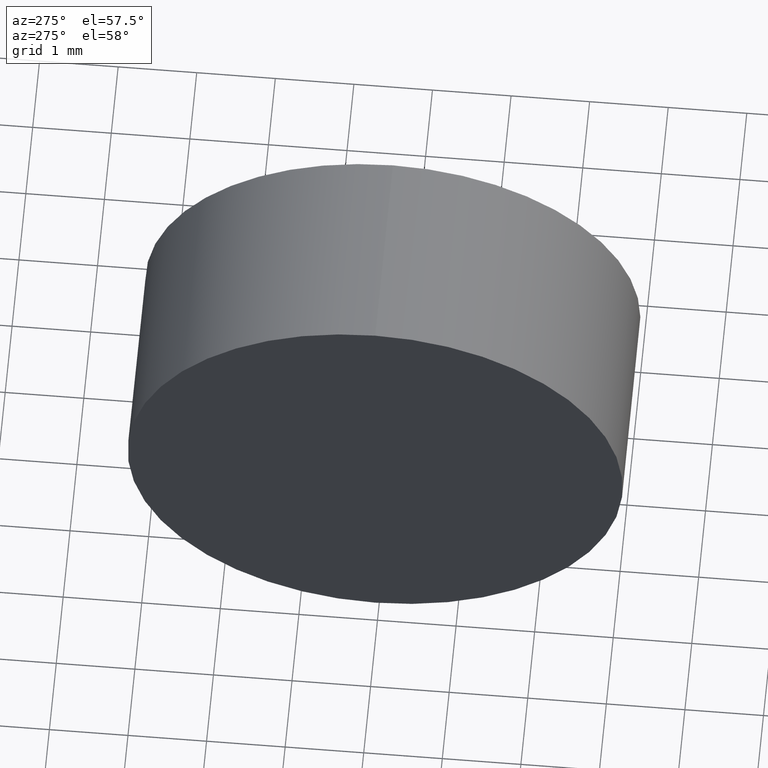
[diagram: clean part render]
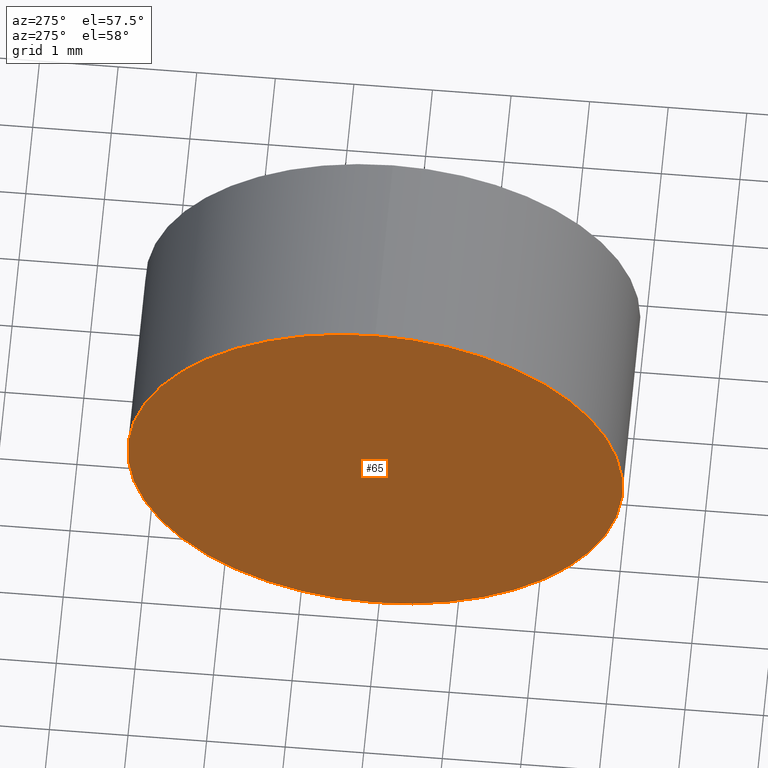
[diagram: same view with one face highlighted and labeled with its STEP entity id]
A machine part, auxiliary view. The second image highlights one B-rep face of the part: STEP entity #65.
In plain terms, the highlighted planar face has unit normal (1, 0, 0).
Its self-contained STEP definition (entity closure, byte-faithful):
#5 = EDGE_CURVE ( 'NONE', #137, #128, #6, .T. ) ;
#6 = CIRCLE ( 'NONE', #37, 3.150000000000001700 ) ;
#16 = CIRCLE ( 'NONE', #78, 3.150000000000001700 ) ;
#18 = CARTESIAN_POINT ( 'NONE',  ( 22.17218947520228100, 13.04452057459747900, 0.0000000000000000000 ) ) ;
#26 = CARTESIAN_POINT ( 'NONE',  ( 22.17218947520228100, 13.04452057459747900, 0.0000000000000000000 ) ) ;
#27 = DIRECTION ( 'NONE',  ( 1.000000000000000000, 0.0000000000000000000, 0.0000000000000000000 ) ) ;
#37 = AXIS2_PLACEMENT_3D ( 'NONE', #26, #184, #99 ) ;
#41 = FACE_OUTER_BOUND ( 'NONE', #180, .T. ) ;
#54 = DIRECTION ( 'NONE',  ( 0.0000000000000000000, 0.0000000000000000000, 1.000000000000000000 ) ) ;
#65 = ADVANCED_FACE ( 'NONE', ( #41 ), #72, .F. ) ;
#72 = PLANE ( 'NONE',  #147 ) ;
#78 = AXIS2_PLACEMENT_3D ( 'NONE', #146, #91, #54 ) ;
#91 = DIRECTION ( 'NONE',  ( -1.000000000000000000, -0.0000000000000000000, -0.0000000000000000000 ) ) ;
#99 = DIRECTION ( 'NONE',  ( 0.0000000000000000000, 0.0000000000000000000, 1.000000000000000000 ) ) ;
#121 = ORIENTED_EDGE ( 'NONE', *, *, #138, .T. ) ;
#128 = VERTEX_POINT ( 'NONE', #153 ) ;
#137 = VERTEX_POINT ( 'NONE', #143 ) ;
#138 = EDGE_CURVE ( 'NONE', #128, #137, #16, .T. ) ;
#143 = CARTESIAN_POINT ( 'NONE',  ( 22.17218947520228100, 13.04452057459747900, -3.150000000000001700 ) ) ;
#146 = CARTESIAN_POINT ( 'NONE',  ( 22.17218947520228100, 13.04452057459747900, 0.0000000000000000000 ) ) ;
#147 = AXIS2_PLACEMENT_3D ( 'NONE', #18, #27, #186 ) ;
#153 = CARTESIAN_POINT ( 'NONE',  ( 22.17218947520228100, 13.04452057459747900, 3.150000000000001700 ) ) ;
#166 = ORIENTED_EDGE ( 'NONE', *, *, #5, .T. ) ;
#180 = EDGE_LOOP ( 'NONE', ( #121, #166 ) ) ;
#184 = DIRECTION ( 'NONE',  ( -1.000000000000000000, -0.0000000000000000000, -0.0000000000000000000 ) ) ;
#186 = DIRECTION ( 'NONE',  ( 0.0000000000000000000, 0.0000000000000000000, -1.000000000000000000 ) ) ;